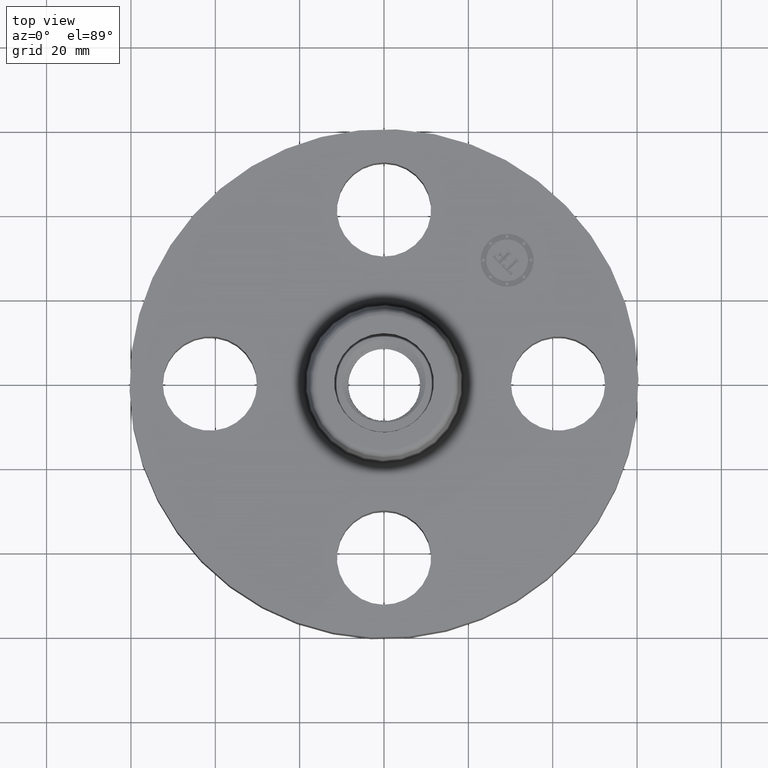
[diagram: clean part render]
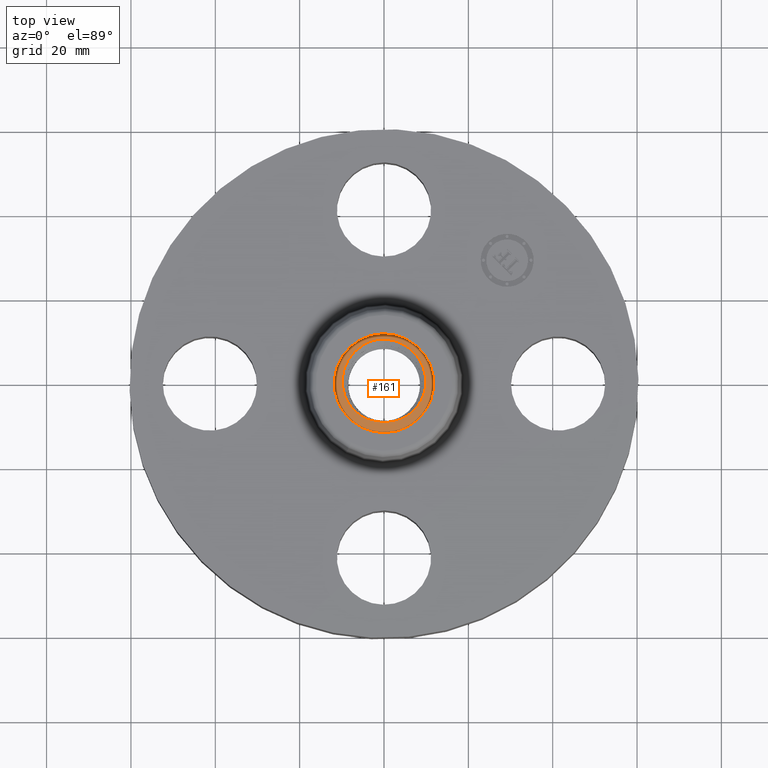
[diagram: same view with one face highlighted and labeled with its STEP entity id]
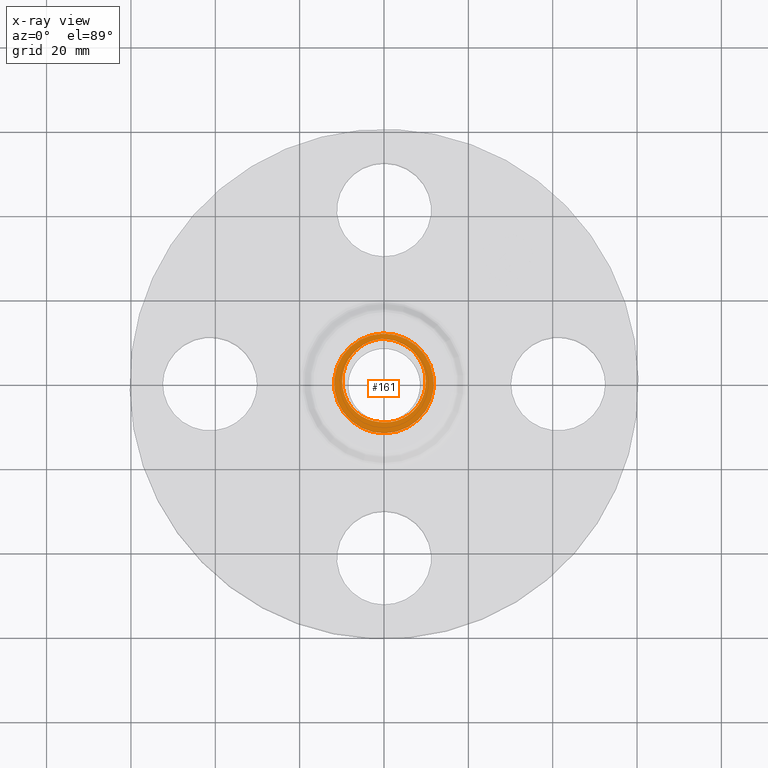
[diagram: x-ray of the same camera — body ghosted, the highlighted face saturated]
A machine part, top view. The second image highlights one B-rep face of the part: STEP entity #161.
The next image is the same camera in x-ray: the body ghosted, the highlighted face saturated — about 0% of this face is hidden behind the body in this view.
In plain terms, the highlighted planar face has unit normal (0, 0, 1).
Its self-contained STEP definition (entity closure, byte-faithful):
#38=AXIS2_PLACEMENT_3D('Plane Axis2P3D',#35,#36,#37) ;
#42=AXIS2_PLACEMENT_3D('Circle Axis2P3D',#40,#41,$) ;
#51=AXIS2_PLACEMENT_3D('Circle Axis2P3D',#49,#50,$) ;
#60=AXIS2_PLACEMENT_3D('Circle Axis2P3D',#58,#59,$) ;
#35=CARTESIAN_POINT('Axis2P3D Location',(2.79741234551E-017,-5.24514814784E-017,0.880000000004)) ;
#40=CARTESIAN_POINT('Axis2P3D Location',(0.,0.,0.880000000004)) ;
#44=CARTESIAN_POINT('Vertex',(-0.222932875452,0.408075891281,0.880000000004)) ;
#46=CARTESIAN_POINT('Vertex',(0.222932875452,-0.408075891281,0.880000000004)) ;
#49=CARTESIAN_POINT('Axis2P3D Location',(0.,0.,0.880000000004)) ;
#58=CARTESIAN_POINT('Axis2P3D Location',(-7.69288395016E-017,5.24514814784E-017,0.880000000004)) ;
#62=CARTESIAN_POINT('Vertex',(-0.0533357320455,-0.357985306164,0.880000290448)) ;
#64=CARTESIAN_POINT('Vertex',(-0.000693761853603,-0.361936021757,0.879999645399)) ;
#68=CARTESIAN_POINT('Control Point',(-0.19641469189,0.359539285282,0.880000000004)) ;
#69=CARTESIAN_POINT('Control Point',(-0.231906292208,0.337939821581,0.880000000004)) ;
#70=CARTESIAN_POINT('Control Point',(-0.264555040211,0.311898365745,0.880000000004)) ;
#71=CARTESIAN_POINT('Control Point',(-0.293599577114,0.281899538075,0.880000000004)) ;
#72=CARTESIAN_POINT('Control Point',(-0.343231214494,0.215346904136,0.880000000004)) ;
#73=CARTESIAN_POINT('Control Point',(-0.37424191256,0.138886034245,0.880000000004)) ;
#74=CARTESIAN_POINT('Control Point',(-0.384671581015,0.0989607513426,0.880000000004)) ;
#75=CARTESIAN_POINT('Control Point',(-0.392876981924,0.0338553099006,0.880000000004)) ;
#76=CARTESIAN_POINT('Control Point',(-0.387578457204,-0.0308830442823,0.880000000004)) ;
#77=CARTESIAN_POINT('Control Point',(-0.383698105912,-0.0549084702572,0.880000000004)) ;
#78=CARTESIAN_POINT('Control Point',(-0.368396110426,-0.117786193364,0.880000000004)) ;
#79=CARTESIAN_POINT('Control Point',(-0.340369260706,-0.176119570208,0.880000000004)) ;
#80=CARTESIAN_POINT('Control Point',(-0.318194387536,-0.209926014852,0.880000000004)) ;
#81=CARTESIAN_POINT('Control Point',(-0.265615442993,-0.270687778138,0.880000000004)) ;
#82=CARTESIAN_POINT('Control Point',(-0.199478553733,-0.31529634314,0.880000000004)) ;
#83=CARTESIAN_POINT('Control Point',(-0.163711881711,-0.332974886843,0.880000000004)) ;
#84=CARTESIAN_POINT('Control Point',(-0.119470413378,-0.347849601366,0.880000000004)) ;
#85=CARTESIAN_POINT('Control Point',(-0.0740355476531,-0.355508954046,0.880000000004)) ;
#86=CARTESIAN_POINT('Control Point',(-0.0671463417941,-0.356501015904,0.880000000004)) ;
#87=CARTESIAN_POINT('Control Point',(-0.0602466222985,-0.357326127861,0.880000000004)) ;
#88=CARTESIAN_POINT('Control Point',(-0.0533356555029,-0.357984878957,0.880000000004)) ;
#89=CARTESIAN_POINT('Vertex',(-0.19641469189,0.359539285282,0.880000000004)) ;
#93=CARTESIAN_POINT('Control Point',(-0.032749902658,0.416478167553,0.880000000004)) ;
#94=CARTESIAN_POINT('Control Point',(-0.0675562609224,0.412129685393,0.880000000004)) ;
#95=CARTESIAN_POINT('Control Point',(-0.101827316127,0.404133669677,0.880000000004)) ;
#96=CARTESIAN_POINT('Control Point',(-0.135056694765,0.392562866533,0.880000000004)) ;
#97=CARTESIAN_POINT('Control Point',(-0.166730030481,0.377604764426,0.880000000004)) ;
#98=CARTESIAN_POINT('Control Point',(-0.19641469189,0.359539285282,0.880000000004)) ;
#99=CARTESIAN_POINT('Vertex',(-0.032749902658,0.416478167553,0.880000000004)) ;
#103=CARTESIAN_POINT('Control Point',(-0.032749902658,0.416478167553,0.880000000004)) ;
#104=CARTESIAN_POINT('Control Point',(-0.0261982531083,0.416720882965,0.880000000004)) ;
#105=CARTESIAN_POINT('Control Point',(-0.0196443003415,0.416834859989,0.880000000004)) ;
#106=CARTESIAN_POINT('Control Point',(-0.0130869154675,0.416819978033,0.880000000004)) ;
#107=CARTESIAN_POINT('Control Point',(-0.00653847131315,0.416676320374,0.880000000004)) ;
#108=CARTESIAN_POINT('Control Point',(2.17680126081E-006,0.416404120074,0.880000000004)) ;
#109=CARTESIAN_POINT('Vertex',(2.17680126082E-006,0.416404120074,0.880000000004)) ;
#113=CARTESIAN_POINT('Control Point',(2.17680126027E-006,0.416404120074,0.880000000004)) ;
#114=CARTESIAN_POINT('Control Point',(0.0418527005403,0.414662438734,0.880000000004)) ;
#115=CARTESIAN_POINT('Control Point',(0.0833840360254,0.407658118248,0.880000000004)) ;
#116=CARTESIAN_POINT('Control Point',(0.123703738441,0.395441127137,0.880000000004)) ;
#117=CARTESIAN_POINT('Control Point',(0.200157538439,0.361157699677,0.880000000004)) ;
#118=CARTESIAN_POINT('Control Point',(0.26525533537,0.30909206912,0.880000000004)) ;
#119=CARTESIAN_POINT('Control Point',(0.29421372944,0.27909176677,0.880000000004)) ;
#120=CARTESIAN_POINT('Control Point',(0.333770605168,0.22584242443,0.880000000004)) ;
#121=CARTESIAN_POINT('Control Point',(0.361412611428,0.166209851884,0.880000000004)) ;
#122=CARTESIAN_POINT('Control Point',(0.370006717624,0.143132353657,0.880000000004)) ;
#123=CARTESIAN_POINT('Control Point',(0.388027714791,0.0801785025302,0.880000000004)) ;
#124=CARTESIAN_POINT('Control Point',(0.392754098743,0.014805890546,0.880000000004)) ;
#125=CARTESIAN_POINT('Control Point',(0.390348893444,-0.0260835049037,0.880000000004)) ;
#126=CARTESIAN_POINT('Control Point',(0.374981909603,-0.106050261918,0.880000000004)) ;
#127=CARTESIAN_POINT('Control Point',(0.339743567001,-0.178926979352,0.880000000004)) ;
#128=CARTESIAN_POINT('Control Point',(0.317460390154,-0.212734599005,0.880000000004)) ;
#129=CARTESIAN_POINT('Control Point',(0.27764030349,-0.25854974564,0.880000000004)) ;
#130=CARTESIAN_POINT('Control Point',(0.230067504647,-0.295195713728,0.880000000004)) ;
#131=CARTESIAN_POINT('Control Point',(0.213251016776,-0.306423212889,0.880000000004)) ;
#132=CARTESIAN_POINT('Control Point',(0.195752979639,-0.316462976832,0.880000000004)) ;
#133=CARTESIAN_POINT('Control Point',(0.177687266923,-0.325262754407,0.880000000004)) ;
#134=CARTESIAN_POINT('Vertex',(0.177687266923,-0.325262754407,0.880000000004)) ;
#138=CARTESIAN_POINT('Control Point',(0.177687266923,-0.325262754407,0.880000000004)) ;
#139=CARTESIAN_POINT('Control Point',(0.14452081503,-0.341418075914,0.880000000004)) ;
#140=CARTESIAN_POINT('Control Point',(0.109441065456,-0.353394098826,0.880000000004)) ;
#141=CARTESIAN_POINT('Control Point',(0.0731292408784,-0.360874510111,0.880000000004)) ;
#142=CARTESIAN_POINT('Control Point',(0.0363949422822,-0.363712045519,0.880000000004)) ;
#143=CARTESIAN_POINT('Control Point',(-4.82937678202E-006,-0.361969138514,0.880000000004)) ;
#144=CARTESIAN_POINT('Vertex',(-4.83091162452E-006,-0.361937362568,0.8800212756)) ;
#147=CARTESIAN_POINT('Line Origine',(-0.000349298023897,-0.361936162042,0.880000000004)) ;
#36=DIRECTION('Axis2P3D Direction',(0.,0.,0.0393700787402)) ;
#37=DIRECTION('Axis2P3D XDirection',(0.0393700787402,0.,0.)) ;
#41=DIRECTION('Axis2P3D Direction',(0.,0.,0.0393700787402)) ;
#50=DIRECTION('Axis2P3D Direction',(0.,0.,0.0393700787402)) ;
#59=DIRECTION('Axis2P3D Direction',(0.,0.,0.0393700787402)) ;
#148=DIRECTION('Vector Direction',(-0.0393700041768,7.6623277945E-005,0.)) ;
#149=VECTOR('Line Direction',#148,0.0393700787402) ;
#55=ORIENTED_EDGE('',*,*,#48,.T.) ;
#56=ORIENTED_EDGE('',*,*,#53,.T.) ;
#153=ORIENTED_EDGE('',*,*,#66,.F.) ;
#154=ORIENTED_EDGE('',*,*,#91,.F.) ;
#155=ORIENTED_EDGE('',*,*,#101,.F.) ;
#156=ORIENTED_EDGE('',*,*,#111,.T.) ;
#157=ORIENTED_EDGE('',*,*,#136,.T.) ;
#158=ORIENTED_EDGE('',*,*,#146,.T.) ;
#159=ORIENTED_EDGE('',*,*,#151,.F.) ;
#160=FACE_BOUND('',#152,.T.) ;
#161=ADVANCED_FACE('PartBody',(#57,#160),#39,.T.) ;
#67=B_SPLINE_CURVE_WITH_KNOTS('',5,(#68,#69,#70,#71,#72,#73,#74,#75,#76,#77,#78,#79,#80,#81,#82,#83,#84,#85,#86,#87,#88),.UNSPECIFIED.,.F.,.U.,(6,3,3,3,3,3,6),(0.,7.29223799411,14.5877478002,18.9641539836,26.2595758417,33.5630681497,34.8621488544),.UNSPECIFIED.) ;
#92=B_SPLINE_CURVE_WITH_KNOTS('',5,(#93,#94,#95,#96,#97,#98),.UNSPECIFIED.,.F.,.U.,(6,6),(0.,6.09912243245),.UNSPECIFIED.) ;
#102=B_SPLINE_CURVE_WITH_KNOTS('',5,(#103,#104,#105,#106,#107,#108),.UNSPECIFIED.,.F.,.U.,(6,6),(0.,1.13991255652),.UNSPECIFIED.) ;
#112=B_SPLINE_CURVE_WITH_KNOTS('',5,(#113,#114,#115,#116,#117,#118,#119,#120,#121,#122,#123,#124,#125,#126,#127,#128,#129,#130,#131,#132,#133),.UNSPECIFIED.,.F.,.U.,(6,3,3,3,3,3,6),(0.,7.29376304439,14.5864798991,18.9589252021,26.2431432364,33.5290057109,37.2315788793),.UNSPECIFIED.) ;
#137=B_SPLINE_CURVE_WITH_KNOTS('',5,(#138,#139,#140,#141,#142,#143),.UNSPECIFIED.,.F.,.U.,(6,6),(0.,6.79747412279),.UNSPECIFIED.) ;
#43=CIRCLE('generated circle',#42,0.465000000002) ;
#52=CIRCLE('generated circle',#51,0.465000000002) ;
#61=CIRCLE('generated circle',#60,0.361936697742) ;
#48=EDGE_CURVE('',#45,#47,#43,.T.) ;
#53=EDGE_CURVE('',#47,#45,#52,.T.) ;
#66=EDGE_CURVE('',#63,#65,#61,.T.) ;
#91=EDGE_CURVE('',#90,#63,#67,.T.) ;
#101=EDGE_CURVE('',#100,#90,#92,.T.) ;
#111=EDGE_CURVE('',#100,#110,#102,.T.) ;
#136=EDGE_CURVE('',#110,#135,#112,.T.) ;
#146=EDGE_CURVE('',#135,#145,#137,.T.) ;
#151=EDGE_CURVE('',#65,#145,#150,.F.) ;
#54=EDGE_LOOP('',(#55,#56)) ;
#152=EDGE_LOOP('',(#153,#154,#155,#156,#157,#158,#159)) ;
#57=FACE_OUTER_BOUND('',#54,.T.) ;
#150=LINE('Line',#147,#149) ;
#39=PLANE('',#38) ;
#45=VERTEX_POINT('',#44) ;
#47=VERTEX_POINT('',#46) ;
#63=VERTEX_POINT('',#62) ;
#65=VERTEX_POINT('',#64) ;
#90=VERTEX_POINT('',#89) ;
#100=VERTEX_POINT('',#99) ;
#110=VERTEX_POINT('',#109) ;
#135=VERTEX_POINT('',#134) ;
#145=VERTEX_POINT('',#144) ;